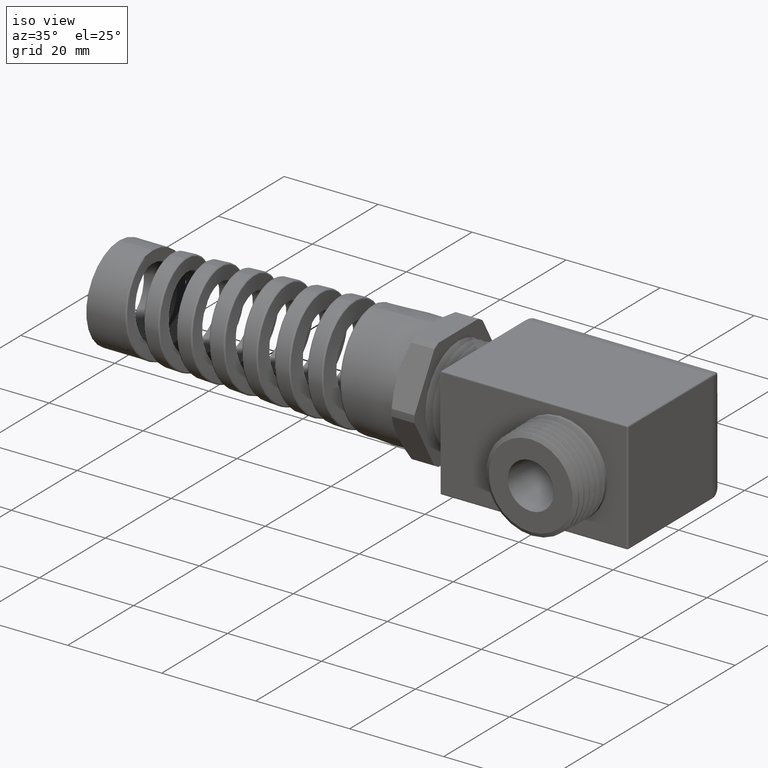
[diagram: clean part render]
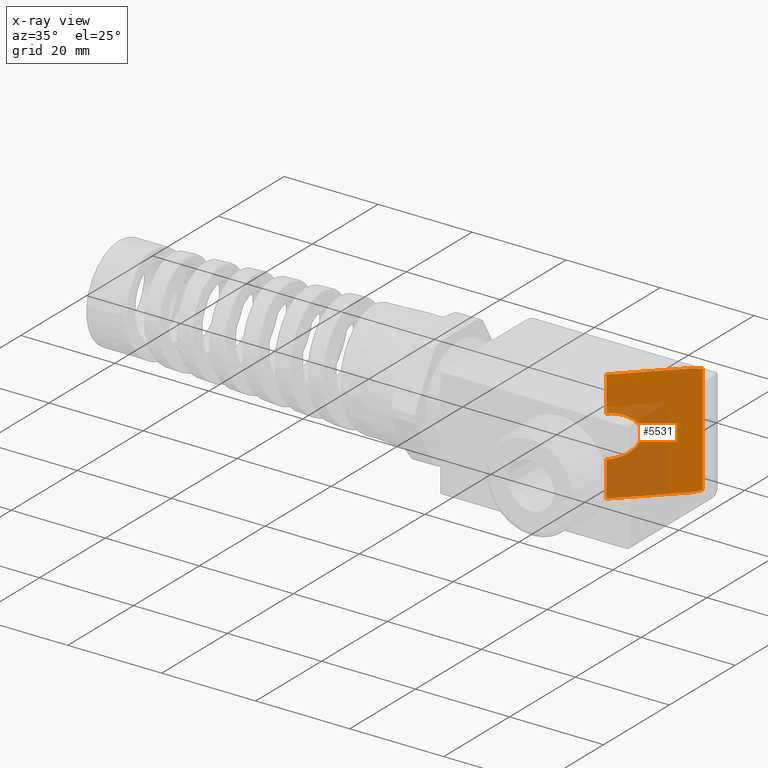
[diagram: x-ray — body ghosted, one internal face saturated and labeled with its STEP entity id]
A machine part, iso view, then the same camera in x-ray: the body is ghosted and one INTERNAL B-rep face — a face not visible from any outside direction — is saturated and labeled: STEP entity #5531.
In plain terms, the highlighted planar face has unit normal (-0.7071, 0.7071, 0).
Its self-contained STEP definition (entity closure, byte-faithful):
#1328 = CARTESIAN_POINT ( 'NONE',  ( 0.9679999999999948600, 0.0000000000000000000, -0.1750000000000000700 ) ) ;
#4007 =( BOUNDED_CURVE ( )  B_SPLINE_CURVE ( 3, ( #8170, #8169, #8168, #8167 ),
 .UNSPECIFIED., .F., .F. ) 
 B_SPLINE_CURVE_WITH_KNOTS ( ( 4, 4 ),
 ( 1.570796326794896800, 4.712388980384689700 ),
 .UNSPECIFIED. ) 
 CURVE ( )  GEOMETRIC_REPRESENTATION_ITEM ( )  RATIONAL_B_SPLINE_CURVE ( ( 1.000000000000000000, 0.3333333333333333100, 0.3333333333333333100, 1.000000000000000000 ) ) 
 REPRESENTATION_ITEM ( '' )  );
#5122 = VERTEX_POINT ( 'NONE', #1328 ) ;
#5215 = VERTEX_POINT ( 'NONE', #12456 ) ;
#5492 = ORIENTED_EDGE ( 'NONE', *, *, #5493, .F. ) ;
#5493 = EDGE_CURVE ( 'NONE', #5494, #5545, #5793, .T. ) ;
#5494 = VERTEX_POINT ( 'NONE', #5792 ) ;
#5495 = ORIENTED_EDGE ( 'NONE', *, *, #5496, .F. ) ;
#5496 = EDGE_CURVE ( 'NONE', #5497, #5494, #5831, .T. ) ;
#5497 = VERTEX_POINT ( 'NONE', #5827 ) ;
#5498 = ORIENTED_EDGE ( 'NONE', *, *, #5499, .F. ) ;
#5499 = EDGE_CURVE ( 'NONE', #5500, #5497, #5824, .T. ) ;
#5500 = VERTEX_POINT ( 'NONE', #5826 ) ;
#5501 = ORIENTED_EDGE ( 'NONE', *, *, #5502, .T. ) ;
#5502 = EDGE_CURVE ( 'NONE', #5500, #5536, #5825, .T. ) ;
#5531 = ADVANCED_FACE ( 'NONE', ( #5870 ), #5869, .T. ) ;
#5532 = EDGE_LOOP ( 'NONE', ( #5533, #5537, #5540, #5543, #5492, #5495, #5498, #5501 ) ) ;
#5533 = ORIENTED_EDGE ( 'NONE', *, *, #5534, .T. ) ;
#5534 = EDGE_CURVE ( 'NONE', #5536, #5122, #5864, .T. ) ;
#5536 = VERTEX_POINT ( 'NONE', #5860 ) ;
#5537 = ORIENTED_EDGE ( 'NONE', *, *, #5539, .T. ) ;
#5539 = EDGE_CURVE ( 'NONE', #5122, #5215, #4007, .T. ) ;
#5540 = ORIENTED_EDGE ( 'NONE', *, *, #5541, .T. ) ;
#5541 = EDGE_CURVE ( 'NONE', #5215, #5542, #8166, .T. ) ;
#5542 = VERTEX_POINT ( 'NONE', #8162 ) ;
#5543 = ORIENTED_EDGE ( 'NONE', *, *, #5544, .T. ) ;
#5544 = EDGE_CURVE ( 'NONE', #5542, #5545, #8161, .T. ) ;
#5545 = VERTEX_POINT ( 'NONE', #8157 ) ;
#5788 = CARTESIAN_POINT ( 'NONE',  ( 1.381333333333332600, 0.4133333333333332700, 0.4700000000000000800 ) ) ;
#5789 = CARTESIAN_POINT ( 'NONE',  ( 1.402581134423580300, 0.4345811344235810400, 0.4700000000000002000 ) ) ;
#5790 = CARTESIAN_POINT ( 'NONE',  ( 1.423522936573932600, 0.4555229365739328400, 0.4664069547920679000 ) ) ;
#5791 = CARTESIAN_POINT ( 'NONE',  ( 1.443555555555555500, 0.4755555555555555100, 0.4593243544286515500 ) ) ;
#5792 = CARTESIAN_POINT ( 'NONE',  ( 1.443555555555555500, 0.4755555555555555100, 0.4593243544286515500 ) ) ;
#5793 =( BOUNDED_CURVE ( )  B_SPLINE_CURVE ( 3, ( #5791, #5790, #5789, #5788 ),
 .UNSPECIFIED., .F., .T. ) 
 B_SPLINE_CURVE_WITH_KNOTS ( ( 4, 4 ),
 ( 1.230959417340774500, 1.570796326794896800 ),
 .UNSPECIFIED. ) 
 CURVE ( )  GEOMETRIC_REPRESENTATION_ITEM ( )  RATIONAL_B_SPLINE_CURVE ( ( 1.000000000000000000, 0.9903990397689925700, 0.9903990397689925700, 1.000000000000000000 ) ) 
 REPRESENTATION_ITEM ( '' )  );
#5817 = DIRECTION ( 'NONE',  ( -0.7071067811865512400, -0.7071067811865436900, 0.0000000000000000000 ) ) ;
#5818 = VECTOR ( 'NONE', #5817, 39.37007874015748900 ) ;
#5819 = CARTESIAN_POINT ( 'NONE',  ( 0.9817780020556732300, 0.01377800205567823400, -0.4700000000000000300 ) ) ;
#5820 = CARTESIAN_POINT ( 'NONE',  ( 1.443555555555555500, 0.4755555555555555100, -0.4593243544286519900 ) ) ;
#5821 = CARTESIAN_POINT ( 'NONE',  ( 1.423522936573932600, 0.4555229365739327200, -0.4664069547920677800 ) ) ;
#5822 = CARTESIAN_POINT ( 'NONE',  ( 1.402581134423580300, 0.4345811344235808200, -0.4700000000000000300 ) ) ;
#5823 = CARTESIAN_POINT ( 'NONE',  ( 1.381333333333332600, 0.4133333333333332200, -0.4700000000000000300 ) ) ;
#5824 =( BOUNDED_CURVE ( )  B_SPLINE_CURVE ( 3, ( #5823, #5822, #5821, #5820 ),
 .UNSPECIFIED., .F., .T. ) 
 B_SPLINE_CURVE_WITH_KNOTS ( ( 4, 4 ),
 ( 4.712388980384689700, 5.052225889838811500 ),
 .UNSPECIFIED. ) 
 CURVE ( )  GEOMETRIC_REPRESENTATION_ITEM ( )  RATIONAL_B_SPLINE_CURVE ( ( 1.000000000000000000, 0.9903990397689925700, 0.9903990397689925700, 1.000000000000000000 ) ) 
 REPRESENTATION_ITEM ( '' )  );
#5825 = LINE ( 'NONE', #5819, #5818 ) ;
#5826 = CARTESIAN_POINT ( 'NONE',  ( 1.381333333333332600, 0.4133333333333332200, -0.4700000000000000300 ) ) ;
#5827 = CARTESIAN_POINT ( 'NONE',  ( 1.443555555555555500, 0.4755555555555555100, -0.4593243544286519900 ) ) ;
#5828 = DIRECTION ( 'NONE',  ( 0.0000000000000000000, 0.0000000000000000000, 1.000000000000000000 ) ) ;
#5829 = VECTOR ( 'NONE', #5828, 39.37007874015748100 ) ;
#5830 = CARTESIAN_POINT ( 'NONE',  ( 1.443555555555555500, 0.4755555555555555100, -0.4703937007874016700 ) ) ;
#5831 = LINE ( 'NONE', #5830, #5829 ) ;
#5860 = CARTESIAN_POINT ( 'NONE',  ( 0.9679999999999949800, -6.137788176939989100E-018, -0.4700000000000000300 ) ) ;
#5861 = DIRECTION ( 'NONE',  ( 0.0000000000000000000, 0.0000000000000000000, 1.000000000000000000 ) ) ;
#5862 = VECTOR ( 'NONE', #5861, 39.37007874015748100 ) ;
#5863 = CARTESIAN_POINT ( 'NONE',  ( 0.9679999999999948600, 0.0000000000000000000, -0.4703937007874016700 ) ) ;
#5864 = LINE ( 'NONE', #5863, #5862 ) ;
#5865 = DIRECTION ( 'NONE',  ( -0.7071067811865512400, -0.7071067811865436900, 0.0000000000000000000 ) ) ;
#5866 = DIRECTION ( 'NONE',  ( -0.7071067811865438000, 0.7071067811865513500, 0.0000000000000000000 ) ) ;
#5867 = CARTESIAN_POINT ( 'NONE',  ( 1.443555555555555500, 0.4755555555555555100, -0.4703937007874016700 ) ) ;
#5868 = AXIS2_PLACEMENT_3D ( 'NONE', #5867, #5866, #5865 ) ;
#5869 = PLANE ( 'NONE',  #5868 ) ;
#5870 = FACE_OUTER_BOUND ( 'NONE', #5532, .T. ) ;
#8157 = CARTESIAN_POINT ( 'NONE',  ( 1.381333333333332600, 0.4133333333333332700, 0.4700000000000000800 ) ) ;
#8158 = DIRECTION ( 'NONE',  ( 0.7071067811865512400, 0.7071067811865436900, 0.0000000000000000000 ) ) ;
#8159 = VECTOR ( 'NONE', #8158, 39.37007874015748900 ) ;
#8160 = CARTESIAN_POINT ( 'NONE',  ( 1.218836982058540700, 0.2508369820585432100, 0.4700000000000000800 ) ) ;
#8161 = LINE ( 'NONE', #8160, #8159 ) ;
#8162 = CARTESIAN_POINT ( 'NONE',  ( 0.9679999999999949800, -6.137788176939989100E-018, 0.4700000000000000800 ) ) ;
#8163 = DIRECTION ( 'NONE',  ( 0.0000000000000000000, 0.0000000000000000000, 1.000000000000000000 ) ) ;
#8164 = VECTOR ( 'NONE', #8163, 39.37007874015748100 ) ;
#8165 = CARTESIAN_POINT ( 'NONE',  ( 0.9679999999999948600, 0.0000000000000000000, -0.4703937007874016700 ) ) ;
#8166 = LINE ( 'NONE', #8165, #8164 ) ;
#8167 = CARTESIAN_POINT ( 'NONE',  ( 0.9679999999999949800, 1.222686989034449900E-017, 0.1749999999999999300 ) ) ;
#8168 = CARTESIAN_POINT ( 'NONE',  ( 1.317999999999998700, 0.3499999999999999800, 0.1749999999999999300 ) ) ;
#8169 = CARTESIAN_POINT ( 'NONE',  ( 1.317999999999998700, 0.3499999999999999800, -0.1749999999999999300 ) ) ;
#8170 = CARTESIAN_POINT ( 'NONE',  ( 0.9679999999999948600, 0.0000000000000000000, -0.1750000000000000700 ) ) ;
#12456 = CARTESIAN_POINT ( 'NONE',  ( 0.9679999999999949800, 1.222686989034449900E-017, 0.1749999999999999300 ) ) ;